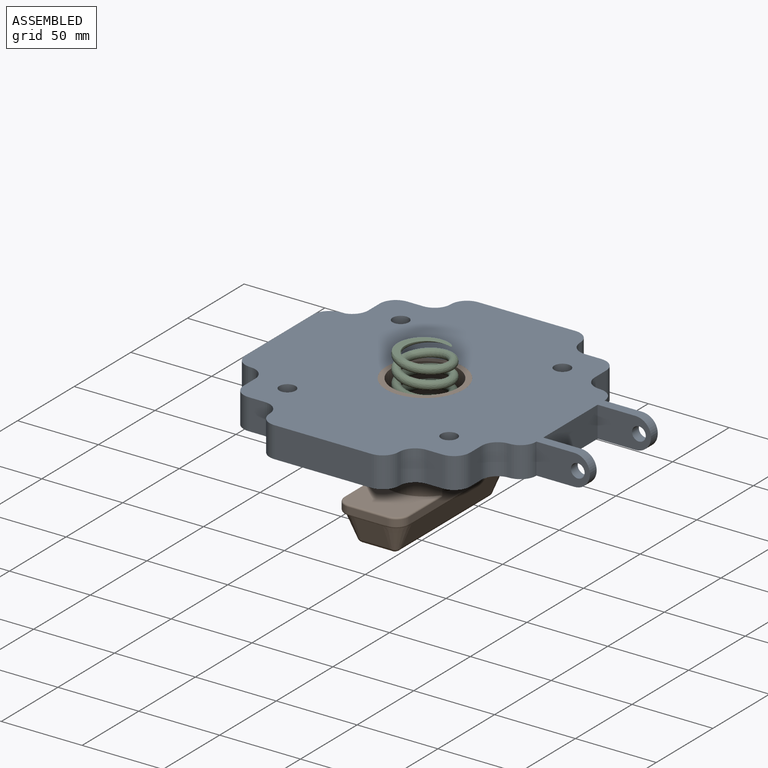
[diagram: assembled view]
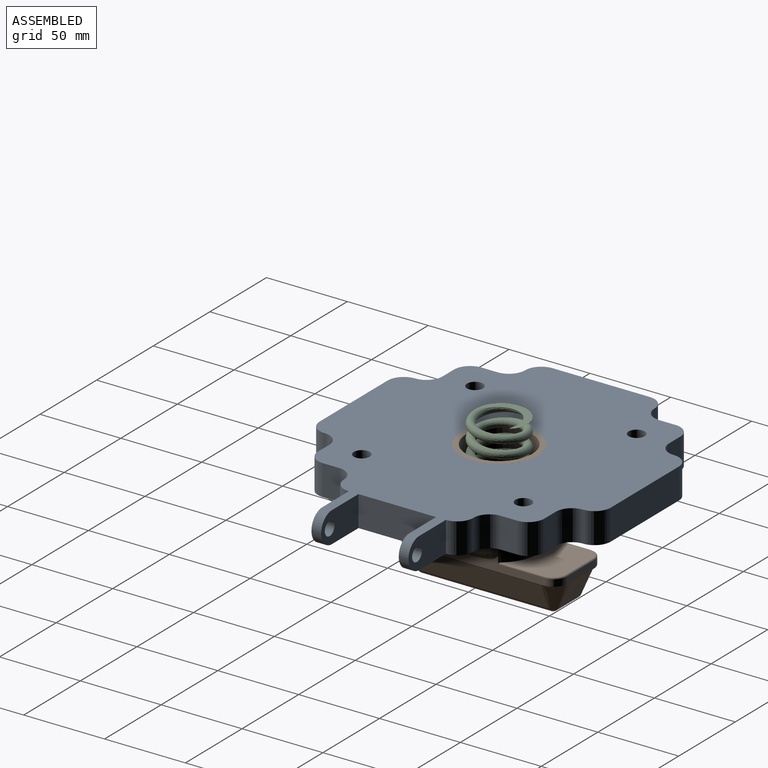
[diagram: assembled view, second angle]
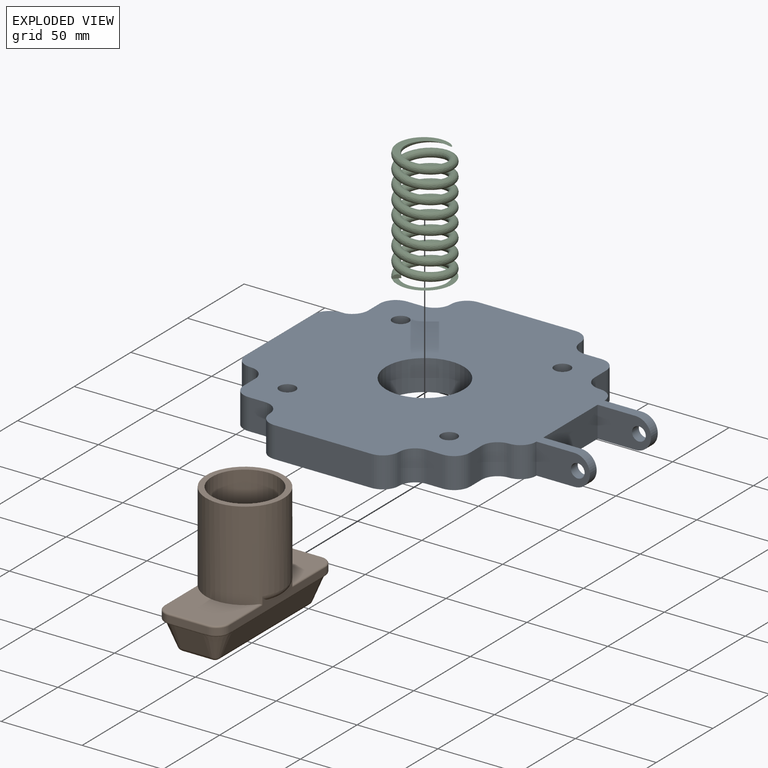
[diagram: exploded view]
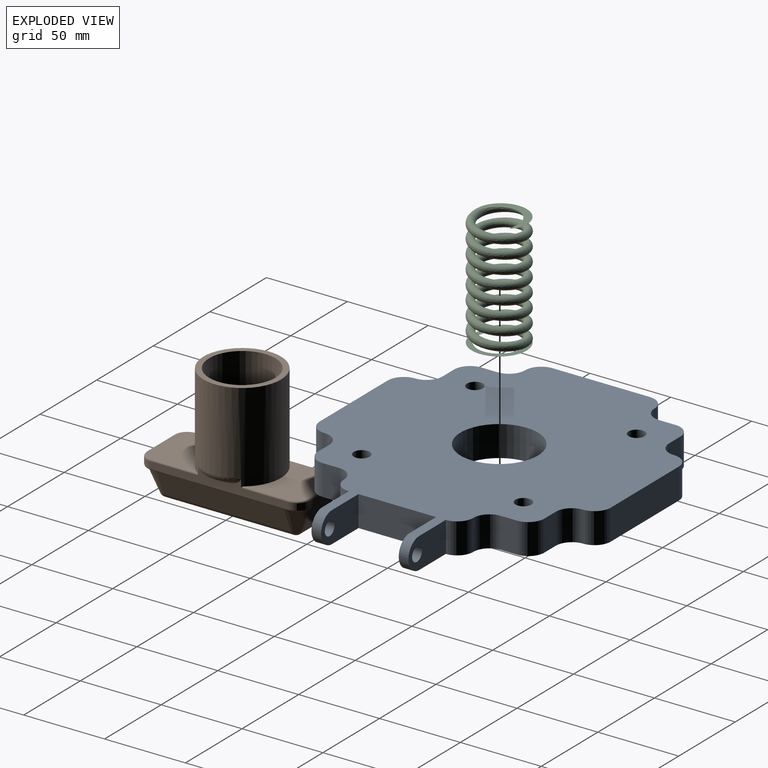
[diagram: exploded view, second angle]
ASSEMBLY  parts=3 mates=2
PART A: 55 faces, bbox 213x180x19 mm
  f0: cylinder r=5mm len=10mm, axis (0,0,1), area 282.7mm2, adj f16,f45
  f1: cylinder r=5mm len=10mm, axis (0,0,1), area 282.7mm2, adj f16,f43
  f2: cylinder r=5mm len=10mm, axis (0,0,1), area 282.7mm2, adj f16,f41
  f3: cylinder r=5mm len=10mm, axis (0,0,1), area 282.7mm2, adj f16,f39
  f4: plane 60x19mm, normal (-1,0,0), area 1140mm2, adj f16,f17,f22,f25
  f5: plane 19x10mm, normal (-1,0,0), area 190mm2, adj f16,f17,f24,f26
  f6: plane 19x10mm, normal (0,-1,0), area 190mm2, adj f16,f17,f26,f28
  f7: plane 60x19mm, normal (0,-1,0), area 1140mm2, adj f16,f17,f27,f32
  f8: plane 19x10mm, normal (0,-1,0), area 190mm2, adj f16,f17,f31,f33
  f9: plane 19x10mm, normal (1,0,0), area 190mm2, adj f16,f17,f29,f33
  f10: plane 48x19mm, normal (1,0,0), area 912mm2, adj f16,f17,f47,f49
  f11: plane 19x10mm, normal (1,0,0), area 190mm2, adj f16,f17,f34,f37
  f12: plane 19x10mm, normal (0,1,0), area 190mm2, adj f16,f17,f34,f36
  f13: plane 60x19mm, normal (0,1,0), area 1140mm2, adj f16,f17,f20,f35
  f14: plane 19x10mm, normal (0,1,0), area 190mm2, adj f16,f17,f19,f21
  f15: plane 19x10mm, normal (-1,0,0), area 190mm2, adj f16,f17,f21,f23
  f16: plane 203.5x180mm, normal (0,0,1), area 24072.4mm2, adj f0,f1,f2,f3,f4,f5,f6,f7
  f17: plane 203.5x180mm, normal (0,0,-1), area 23679.7mm2, adj f4,f5,f6,f7,f8,f9,f10,f11
  f18: cylinder r=24mm len=48mm, axis (0,0,1), area 2865.1mm2, adj f16,f17
  f19: cylinder r=10mm len=19mm, axis (0,0,1), area 298.5mm2, adj f14,f16,f17,f20
  f20: cylinder r=10mm len=19mm, axis (0,0,1), area 298.5mm2, adj f13,f16,f17,f19
  f21: cylinder r=10mm len=19mm, axis (0,0,-1), area 298.5mm2, adj f14,f15,f16,f17
  f22: cylinder r=10mm len=19mm, axis (0,0,-1), area 298.5mm2, adj f4,f16,f17,f23
  f23: cylinder r=10mm len=19mm, axis (0,0,1), area 298.5mm2, adj f15,f16,f17,f22
  f24: cylinder r=10mm len=19mm, axis (0,0,1), area 298.5mm2, adj f5,f16,f17,f25
  f25: cylinder r=10mm len=19mm, axis (0,0,-1), area 298.5mm2, adj f4,f16,f17,f24
  f26: cylinder r=10mm len=19mm, axis (0,0,-1), area 298.5mm2, adj f5,f6,f16,f17
  f27: cylinder r=10mm len=19mm, axis (0,0,-1), area 298.5mm2, adj f7,f16,f17,f28
  f28: cylinder r=10mm len=19mm, axis (0,0,1), area 298.5mm2, adj f6,f16,f17,f27
  f29: cylinder r=10mm len=19mm, axis (0,0,1), area 298.5mm2, adj f9,f16,f17,f30
  f30: cylinder r=10mm len=19mm, axis (0,0,-1), area 298.5mm2, adj f16,f17,f29,f48
  f31: cylinder r=10mm len=19mm, axis (0,0,1), area 298.5mm2, adj f8,f16,f17,f32
  f32: cylinder r=10mm len=19mm, axis (0,0,-1), area 298.5mm2, adj f7,f16,f17,f31
  f33: cylinder r=10mm len=19mm, axis (0,0,-1), area 298.5mm2, adj f8,f9,f16,f17
  f34: cylinder r=10mm len=19mm, axis (0,0,-1), area 298.5mm2, adj f11,f12,f16,f17
  f35: cylinder r=10mm len=19mm, axis (0,0,-1), area 298.5mm2, adj f13,f16,f17,f36
  f36: cylinder r=10mm len=19mm, axis (0,0,1), area 298.5mm2, adj f12,f16,f17,f35
  f37: cylinder r=10mm len=19mm, axis (0,0,1), area 298.5mm2, adj f11,f16,f17,f38
  f38: cylinder r=10mm len=19mm, axis (0,0,1), area 298.5mm2, adj f16,f17,f37,f50
  f39: plane 15x15mm, normal (0,0,-1), area 98.2mm2, adj f3,f40
  f40: cylinder r=7.5mm len=15mm, axis (0,0,-1), area 471.2mm2, adj f17,f39
  f41: plane 15x15mm, normal (0,0,-1), area 98.2mm2, adj f2,f42
  f42: cylinder r=7.5mm len=15mm, axis (0,0,-1), area 471.2mm2, adj f17,f41
  f43: plane 15x15mm, normal (0,0,-1), area 98.2mm2, adj f1,f44
  f44: cylinder r=7.5mm len=15mm, axis (0,0,-1), area 471.2mm2, adj f17,f43
  f45: plane 15x15mm, normal (0,0,-1), area 98.2mm2, adj f0,f46
  f46: cylinder r=7.5mm len=15mm, axis (0,0,-1), area 471.2mm2, adj f17,f45
  f47: plane 33x19mm, normal (0,1,0), area 531.5mm2, adj f10,f16,f17,f52,f54
  f48: plane 33x19mm, normal (0,-1,0), area 531.5mm2, adj f16,f17,f30,f52,f54
  f49: plane 33x19mm, normal (0,-1,0), area 531.5mm2, adj f10,f16,f17,f51,f53
  f50: plane 33x19mm, normal (0,1,0), area 531.5mm2, adj f16,f17,f38,f51,f53
  f51: cylinder r=4.25mm len=8.5mm, axis (0,-1,0), area 160.2mm2, adj f49,f50
  f52: cylinder r=4.25mm len=8.5mm, axis (0,-1,0), area 160.2mm2, adj f47,f48
  f53: cylinder r=9.5mm len=19mm, axis (0,1,0), area 179.1mm2, adj f16,f17,f49,f50
  f54: cylinder r=9.5mm len=19mm, axis (0,-1,0), area 179.1mm2, adj f16,f17,f47,f48
PART B: 73 faces, bbox 102.3x52x79 mm
  f0: plane 6.95x6.95mm, normal (0,0,-1), area 5.5mm2, adj f22,f62
  f1: plane 6.95x6.95mm, normal (0,0,-1), area 5.5mm2, adj f20,f50
  f2: plane 6.95x6.95mm, normal (0,0,-1), area 5.5mm2, adj f24,f53
  f3: plane 6.95x6.95mm, normal (0,0,-1), area 5.5mm2, adj f18,f41
  f4: plane 41x40mm, normal (0,0,1), area 1243.4mm2, adj f6,f10,f15,f71
  f5: plane 38x34.84mm, normal (0,0,1), area 1055.2mm2, adj f16,f35,f36,f37,f38,f39
  f6: plane 85x9.88mm, normal (0,-1,0), area 393.9mm2, adj f4,f7,f13,f16,f35,f42,f44,f46
  f7: cylinder r=8mm len=8mm, axis (0,0,1), area 50.3mm2, adj f6,f8,f40,f41,f43,f65
  f8: plane 24x4.11mm, normal (1,0,0), area 98.3mm2, adj f7,f9,f45,f47,f49,f66
  f9: cylinder r=8mm len=8mm, axis (0,0,1), area 50.3mm2, adj f8,f10,f51,f53,f55,f67
  f10: plane 85x9.88mm, normal (0,1,0), area 393.9mm2, adj f4,f9,f11,f16,f39,f57,f59,f61
  f11: cylinder r=8mm len=8mm, axis (0,0,1), area 50.3mm2, adj f10,f12,f38,f60,f62,f63
  f12: plane 24x4.11mm, normal (-1,0,0), area 98.3mm2, adj f11,f13,f37,f54,f56,f58
  f13: cylinder r=8mm len=8mm, axis (0,0,1), area 50.3mm2, adj f6,f12,f36,f48,f50,f52
  f14: plane 38x34.84mm, normal (0,0,1), area 1055.2mm2, adj f16,f64,f65,f66,f67,f68
  f15: cylinder r=20.5mm len=55mm, axis (0,0,-1), area 7084.3mm2, adj f4,f17,f69,f70
  f16: cylinder r=24mm len=56mm, axis (0,0,-1), area 8029.1mm2, adj f5,f6,f10,f14,f17,f35,f39,f64
  f17: plane 48x48mm, normal (0,0,1), area 489.3mm2, adj f15,f16
  f18: cone r=3mm half-angle=22.5deg, axis (0,0,1), area 189.6mm2, adj f3,f19,f25,f28,f40,f42,f43,f45
  f19: plane 79x14.91mm, normal (0,-0.92,-0.38), area 1275.2mm2, adj f18,f20,f27,f44
  f20: cone r=3mm half-angle=22.5deg, axis (0,0,1), area 189.6mm2, adj f1,f19,f21,f29,f46,f48,f52,f54
  f21: plane 18x14.91mm, normal (-0.92,0,-0.38), area 290.6mm2, adj f20,f22,f31,f56
  f22: cone r=3mm half-angle=22.5deg, axis (0,0,1), area 189.6mm2, adj f0,f21,f23,f33,f58,f60,f61,f63
  f23: plane 79x14.91mm, normal (0,0.92,-0.38), area 1275.2mm2, adj f22,f24,f34,f59
  f24: cone r=3mm half-angle=22.5deg, axis (0,0,1), area 189.6mm2, adj f2,f23,f25,f32,f49,f51,f55,f57
  f25: plane 18x14.91mm, normal (0.92,0,-0.38), area 290.6mm2, adj f18,f24,f30,f47
  f26: plane 78.32x17.32mm, normal (0,0,-1), area 1356.3mm2, adj f27,f30,f31,f34
  f27: cylinder r=5mm len=79mm, axis (-1,0,0), area 463.3mm2, adj f19,f26,f28,f29
  f28: bspline ~4.62x4.62mm, area 20.5mm2, adj f18,f27,f30
  f29: bspline ~4.62x4.62mm, area 20.5mm2, adj f20,f27,f31
  f30: cylinder r=5mm len=18mm, axis (0,-1,0), area 104mm2, adj f25,f26,f28,f32
  f31: cylinder r=5mm len=18mm, axis (0,-1,0), area 104mm2, adj f21,f26,f29,f33
  f32: bspline ~4.62x4.62mm, area 20.5mm2, adj f24,f30,f34
  f33: bspline ~4.62x4.62mm, area 20.5mm2, adj f22,f31,f34
  f34: cylinder r=5mm len=79mm, axis (-1,0,0), area 463.3mm2, adj f23,f26,f32,f33
  f35: cylinder r=1mm len=29.23mm, axis (1,0,0), area 44.8mm2, adj f5,f6,f16,f36
  f36: torus R=7mm, axis (0,0,1), area 18.8mm2, adj f5,f13,f35,f37
  f37: cylinder r=1mm len=24mm, axis (0,-1,0), area 37.7mm2, adj f5,f12,f36,f38
  f38: torus R=7mm, axis (0,0,1), area 18.8mm2, adj f5,f11,f37,f39
  f39: cylinder r=1mm len=29.23mm, axis (-1,0,0), area 44.8mm2, adj f5,f10,f16,f38
  f40: bspline ~1.9x1.45mm, area 0.1mm2, adj f7,f18,f41,f42
  f41: torus R=7mm, axis (0,0,1), area 18.7mm2, adj f3,f7,f40,f43
  f42: bspline ~4.53x1.17mm, area 3.8mm2, adj f6,f18,f40,f44
  f43: bspline ~1.9x1.45mm, area 0.1mm2, adj f7,f18,f41,f45
  f44: cylinder r=1mm len=79mm, axis (1,0,0), area 86.7mm2, adj f6,f19,f42,f46
  f45: bspline ~4.23x1.11mm, area 3.8mm2, adj f8,f18,f43,f47
  f46: bspline ~4.23x1.11mm, area 3.8mm2, adj f6,f20,f44,f48
  f47: cylinder r=1mm len=18mm, axis (0,1,0), area 19.8mm2, adj f8,f25,f45,f49
  f48: bspline ~1.9x1.45mm, area 0.1mm2, adj f13,f20,f46,f50
  f49: bspline ~4.53x1.17mm, area 3.8mm2, adj f8,f24,f47,f51
  f50: torus R=7mm, axis (0,0,1), area 18.7mm2, adj f1,f13,f48,f52
  f51: bspline ~1.9x1.45mm, area 0.1mm2, adj f9,f24,f49,f53
  f52: bspline ~1.9x1.45mm, area 0.1mm2, adj f13,f20,f50,f54
  f53: torus R=7mm, axis (0,0,1), area 18.7mm2, adj f2,f9,f51,f55
  f54: bspline ~4.53x1.17mm, area 3.8mm2, adj f12,f20,f52,f56
  f55: bspline ~1.9x1.45mm, area 0.1mm2, adj f9,f24,f53,f57
  f56: cylinder r=1mm len=18mm, axis (0,-1,0), area 19.8mm2, adj f12,f21,f54,f58
  f57: bspline ~4.23x1.11mm, area 3.8mm2, adj f10,f24,f55,f59
  f58: bspline ~4.23x1.11mm, area 3.8mm2, adj f12,f22,f56,f60
  f59: cylinder r=1mm len=79mm, axis (-1,0,0), area 86.7mm2, adj f10,f23,f57,f61
  f60: bspline ~1.9x1.45mm, area 0.1mm2, adj f11,f22,f58,f62
  f61: bspline ~4.53x1.17mm, area 3.8mm2, adj f10,f22,f59,f63
  f62: torus R=7mm, axis (0,0,1), area 18.7mm2, adj f0,f11,f60,f63
  f63: bspline ~1.9x1.45mm, area 0.1mm2, adj f11,f22,f61,f62
  f64: cylinder r=1mm len=29.23mm, axis (1,0,0), area 44.8mm2, adj f6,f14,f16,f65
  f65: torus R=7mm, axis (0,0,1), area 18.8mm2, adj f7,f14,f64,f66
  f66: cylinder r=1mm len=24mm, axis (0,1,0), area 37.7mm2, adj f8,f14,f65,f67
  f67: torus R=7mm, axis (0,0,1), area 18.8mm2, adj f9,f14,f66,f68
  f68: cylinder r=1mm len=29.23mm, axis (-1,0,0), area 44.8mm2, adj f10,f14,f16,f67
  f69: torus R=19mm, axis (0,0,-1), area 141mm2, adj f6,f15,f16
  f70: torus R=19mm, axis (0,0,-1), area 141mm2, adj f10,f15,f16
  f71: cylinder r=4.75mm len=25mm, axis (0,0,-1), area 746.1mm2, adj f4,f72
  f72: plane 9.5x9.5mm, normal (0,0,1), area 70.9mm2, adj f71
PART C: 8 faces, bbox 82.8x34.4x34.4 mm
  f0: bspline ~82.73x34.33mm, area 11672mm2, adj f1,f2,f3,f4,f5,f6,f7
  f1: plane 3.54x3.54mm, normal (-0.1,0.7,-0.7), area 9.6mm2, adj f0,f3,f4,f5,f6,f7
  f2: plane 31.76x25.23mm, normal (1,0,0), area 210.6mm2, adj f0
  f3: plane 33.97x33.97mm, normal (-1,0,0), area 330.7mm2, adj f0,f1,f4,f6
  f4: cylinder r=16.96mm len=33.92mm, axis (-1,0,0), area 1mm2, adj f0,f1,f3,f5
  f5: plane 33.92x33.92mm, normal (1,0,0), area 247.4mm2, adj f0,f1,f4,f6
  f6: cylinder r=13.51mm len=27.03mm, axis (-1,0,0), area 2.9mm2, adj f0,f1,f3,f5,f7
  f7: plane 20.64x5.77mm, normal (-1,0,0), area 23.8mm2, adj f0,f1,f6
PLACE A t=(-7.64,13.66,17.62)mm fixed
PLACE B rot(axis=(0,0,1),90deg) t=(-7.64,13.66,-18.38)mm
PLACE C rot(axis=(-0.58,-0.58,-0.58),120deg) t=(-7.64,13.66,-18.38)mm
MATE fastened C.f4 <-> B.f15  axis (0,0,-1) through (-7.64,13.66,-18.38)mm
MATE fastened A.f18 <-> B.f15  axis (0,0,1) through (-7.64,13.66,36.62)mm
